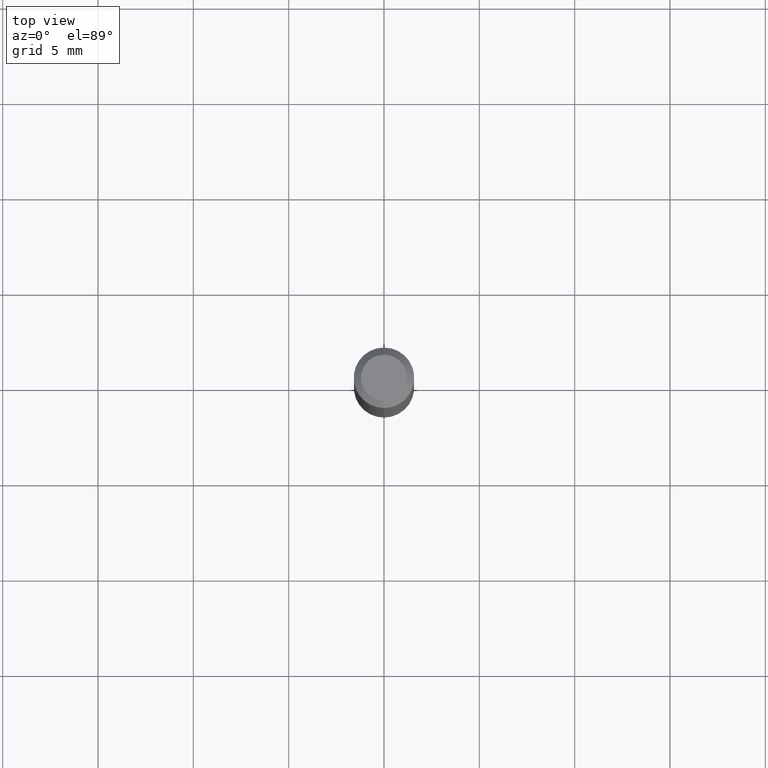
[diagram: clean part render]
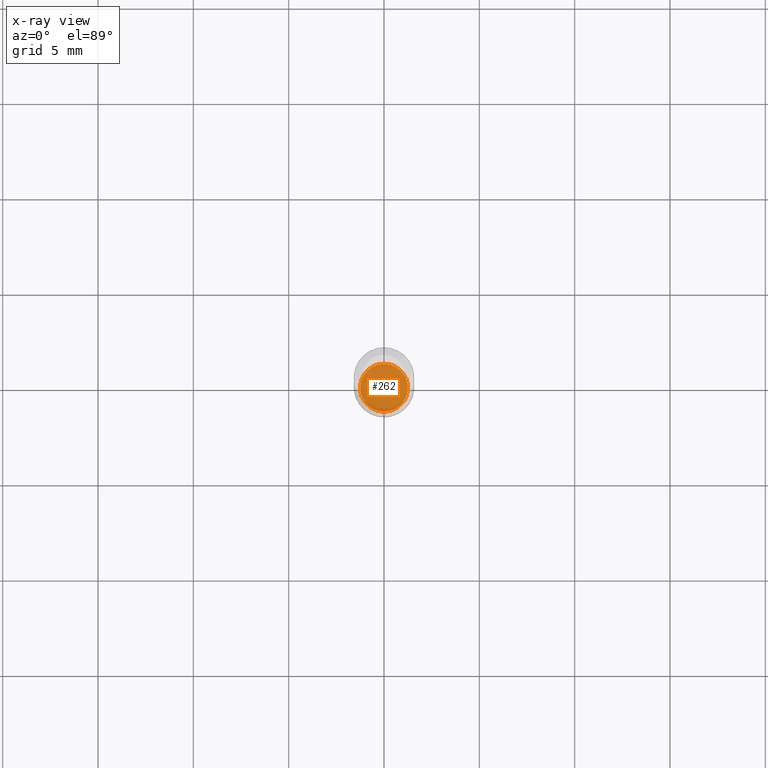
[diagram: x-ray — body ghosted, one internal face saturated and labeled with its STEP entity id]
A machine part, top view, then the same camera in x-ray: the body is ghosted and one INTERNAL B-rep face — a face not visible from any outside direction — is saturated and labeled: STEP entity #262.
In plain terms, the highlighted planar face has unit normal (-0, 0, 1).
Its self-contained STEP definition (entity closure, byte-faithful):
#4 = FACE_OUTER_BOUND ( 'NONE', #97, .T. ) ;
#6 = AXIS2_PLACEMENT_3D ( 'NONE', #284, #396, #290 ) ;
#37 = DIRECTION ( 'NONE',  ( -2.445427275535626126E-29, 3.491540813097021947E-15, 1.000000000000000000 ) ) ;
#48 = ORIENTED_EDGE ( 'NONE', *, *, #148, .F. ) ;
#58 = CIRCLE ( 'NONE', #163, 0.04950000000000000233 ) ;
#64 = EDGE_CURVE ( 'NONE', #218, #447, #58, .T. ) ;
#97 = EDGE_LOOP ( 'NONE', ( #48, #454 ) ) ;
#141 = CARTESIAN_POINT ( 'NONE',  ( -3.456566525454408447E-16, -0.04950000000000419342, -1.199999999999999956 ) ) ;
#148 = EDGE_CURVE ( 'NONE', #447, #218, #448, .T. ) ;
#162 = CARTESIAN_POINT ( 'NONE',  ( 2.934512730642751911E-29, -4.189848975716427126E-15, -1.200000000000000178 ) ) ;
#163 = AXIS2_PLACEMENT_3D ( 'NONE', #436, #391, #322 ) ;
#218 = VERTEX_POINT ( 'NONE', #367 ) ;
#262 = ADVANCED_FACE ( 'NONE', ( #4 ), #350, .F. ) ;
#283 = AXIS2_PLACEMENT_3D ( 'NONE', #162, #37, #433 ) ;
#284 = CARTESIAN_POINT ( 'NONE',  ( 2.934512730642751911E-29, -4.189848975716427126E-15, -1.200000000000000178 ) ) ;
#290 = DIRECTION ( 'NONE',  ( -6.982962677686265922E-15, -1.000000000000000000, 2.759442417842689940E-15 ) ) ;
#322 = DIRECTION ( 'NONE',  ( -6.982962677686265922E-15, -1.000000000000000000, 2.759442417842689940E-15 ) ) ;
#350 = PLANE ( 'NONE',  #283 ) ;
#367 = CARTESIAN_POINT ( 'NONE',  ( 3.534950110406793936E-16, 0.04949999999999581124, -1.200000000000000400 ) ) ;
#391 = DIRECTION ( 'NONE',  ( -2.445427275535626406E-29, 3.491540813097021947E-15, 1.000000000000000000 ) ) ;
#396 = DIRECTION ( 'NONE',  ( -2.445427275535626406E-29, 3.491540813097021947E-15, 1.000000000000000000 ) ) ;
#433 = DIRECTION ( 'NONE',  ( -6.982962677686265922E-15, -1.000000000000000000, 3.491540813097021947E-15 ) ) ;
#436 = CARTESIAN_POINT ( 'NONE',  ( 2.934512730642751911E-29, -4.189848975716427126E-15, -1.200000000000000178 ) ) ;
#447 = VERTEX_POINT ( 'NONE', #141 ) ;
#448 = CIRCLE ( 'NONE', #6, 0.04950000000000000233 ) ;
#454 = ORIENTED_EDGE ( 'NONE', *, *, #64, .F. ) ;